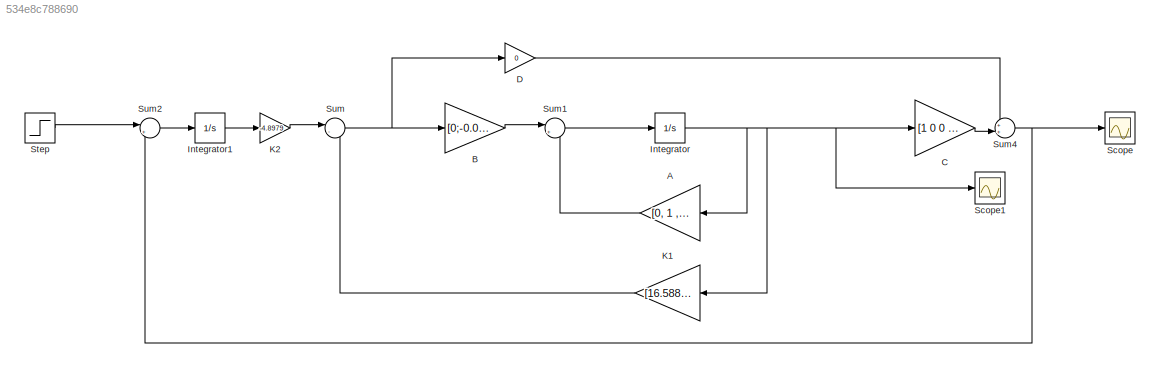
MODEL slx_534e8c788690
KIND model
CONFIG AbsTol = auto
CONFIG EnableMultiTasking = off
CONFIG FixedStep = auto
CONFIG MaxStep = auto
CONFIG MinStep = auto
CONFIG RelTol = 1e-3
CONFIG SampleTimeConstraint = Unconstrained
CONFIG Solver = VariableStepAuto
CONFIG SolverName = VariableStepAuto
CONFIG StartTime = 0.0
CONFIG StopTime = 50.0
BLOCK [Gain] A
  Gain = [0, 1 ,0, 0 ;-0.378 ,0 ,7.0147 ,0.0343;0, 0, 0, 1; 18.9001 ,0, -0.3797, -1.7133]
  Multiplication = Matrix(K*u) (u vector)
  OutDataTypeStr = Inherit: Inherit via internal rule
  ParamDataTypeStr = Inherit: Inherit via internal rule
  SaturateOnIntegerOverflow = off
BLOCK [Gain] B
  Gain = [0;-0.0699;0;3.4965]
  Multiplication = Matrix(K*u) (u vector)
  OutDataTypeStr = Inherit: Inherit via internal rule
  ParamDataTypeStr = Inherit: Inherit via internal rule
  SaturateOnIntegerOverflow = off
BLOCK [Gain] C
  Gain = [1 0 0 0]
  Multiplication = Matrix(K*u) (u vector)
  OutDataTypeStr = Inherit: Inherit via internal rule
  ParamDataTypeStr = Inherit: Inherit via internal rule
  SaturateOnIntegerOverflow = off
BLOCK [Gain] D
  Gain = 0
  OutDataTypeStr = Inherit: Inherit via internal rule
  ParamDataTypeStr = Inherit: Inherit via internal rule
  SaturateOnIntegerOverflow = off
BLOCK [Integrator] Integrator
  Ports = [1, 1]
BLOCK [Integrator] Integrator1
  Ports = [1, 1]
BLOCK [Gain] K1
  Gain = [16.5883, 9.1973, 24.4245, 3.9839]
  Multiplication = Matrix(K*u) (u vector)
  OutDataTypeStr = Inherit: Inherit via internal rule
  ParamDataTypeStr = Inherit: Inherit via internal rule
  SaturateOnIntegerOverflow = off
BLOCK [Gain] K2
  Gain = -4.8979
  OutDataTypeStr = Inherit: Inherit via internal rule
  ParamDataTypeStr = Inherit: Inherit via internal rule
  SaturateOnIntegerOverflow = off
BLOCK [Scope] Scope
  Floating = off
  NumInputPorts = 1
  Ports = [1]
  ScopeSpecificationString = Simulink.scopes.TimeScopeBlockCfg('CurrentConfiguration', extmgr.ConfigurationSet(extmgr.Configuration('Core','General UI',true),extmgr.Configuration('Core','Source UI',true),extmgr.Configuration('Sources','WiredSimulink',true),extmgr.Configuration('Visuals','Time Domain',true,'SerializedDisplays',{struct('MinYLimReal','-0.0125','MaxYLimReal','0.1125','YLabelReal','','MinYLimMag','0.00000','MaxYLi...<+1318ch>
BLOCK [Scope] Scope1
  Floating = off
  NumInputPorts = 1
  Ports = [1]
  ScopeSpecificationString = Simulink.scopes.TimeScopeBlockCfg('CurrentConfiguration', extmgr.ConfigurationSet(extmgr.Configuration('Core','General UI',true),extmgr.Configuration('Core','Source UI',true),extmgr.Configuration('Sources','WiredSimulink',true,'DataLoggingVariableName','ScopeData1'),extmgr.Configuration('Visuals','Time Domain',true,'SerializedDisplays',{struct('MinYLimReal','-0.02374','MaxYLimReal','0.11375','YLab...<+1416ch>
BLOCK [Step] Step
  After = 0.1
  SampleTime = 0
  Time = 0
BLOCK [Sum] Sum
  IconShape = round
  InputSameDT = off
  Inputs = |--
  OutDataTypeStr = Inherit: Inherit via internal rule
  Ports = [2, 1]
  SaturateOnIntegerOverflow = off
BLOCK [Sum] Sum1
  IconShape = round
  InputSameDT = off
  Inputs = |++
  OutDataTypeStr = Inherit: Inherit via internal rule
  Ports = [2, 1]
  SaturateOnIntegerOverflow = off
BLOCK [Sum] Sum2
  IconShape = round
  InputSameDT = off
  Inputs = |+-
  OutDataTypeStr = Inherit: Inherit via internal rule
  Ports = [2, 1]
  SaturateOnIntegerOverflow = off
BLOCK [Sum] Sum4
  IconShape = round
  InputSameDT = off
  Inputs = ++|
  OutDataTypeStr = Inherit: Inherit via internal rule
  Ports = [2, 1]
  SaturateOnIntegerOverflow = off
LINE A:1 -> Sum1:2
LINE B:1 -> Sum1:1
LINE C:1 -> Sum4:2
LINE D:1 -> Sum4:1
LINE Integrator1:1 -> K2:1
NET Integrator:1 -> A:1, C:1, K1:1, Scope1:1
LINE K1:1 -> Sum:2
LINE K2:1 -> Sum:1
LINE Step:1 -> Sum2:1
LINE Sum1:1 -> Integrator:1
LINE Sum2:1 -> Integrator1:1
NET Sum4:1 -> Scope:1, Sum2:2
NET Sum:1 -> B:1, D:1
note: NET lines group one-source signal fan-out (src -> all destinations, sorted); 1:1 wires keep LINE
